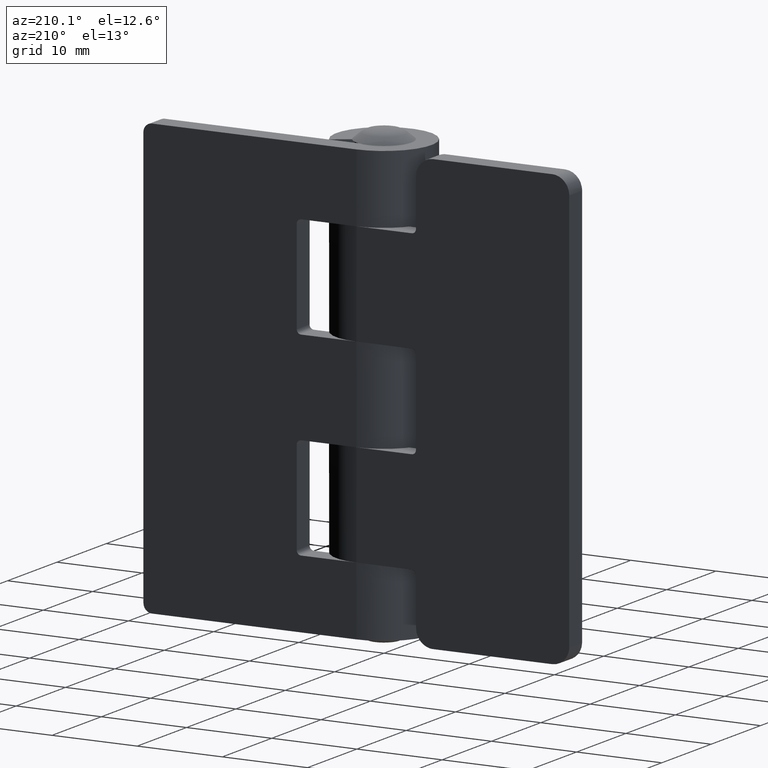
[diagram: clean part render]
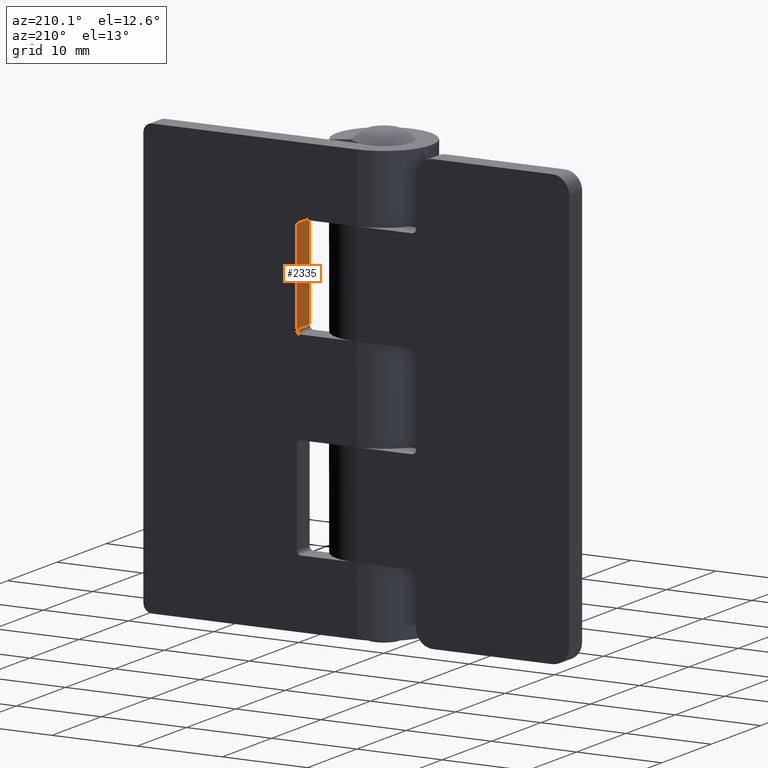
[diagram: same view with one face highlighted and labeled with its STEP entity id]
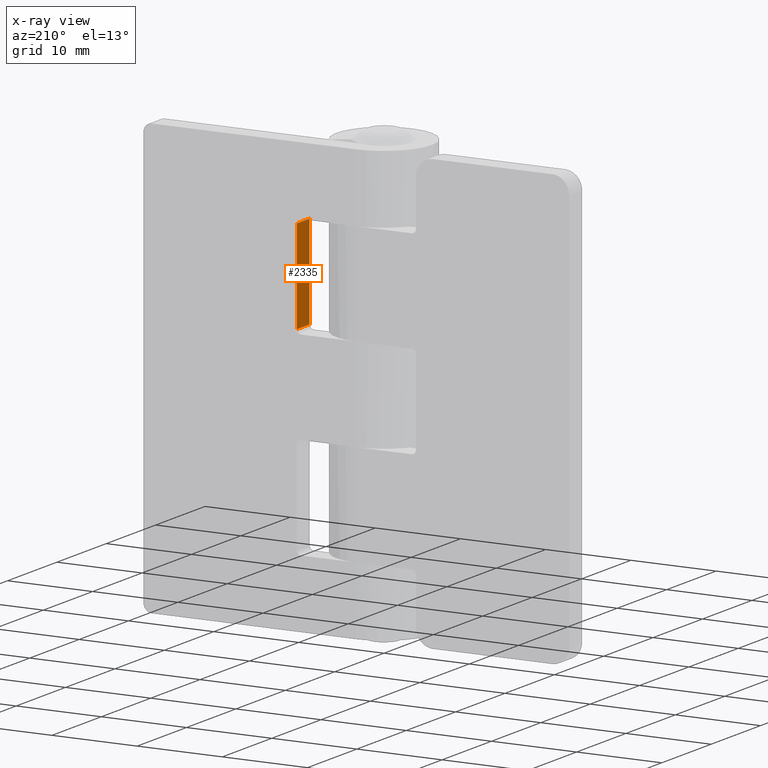
[diagram: x-ray of the same camera — body ghosted, the highlighted face saturated]
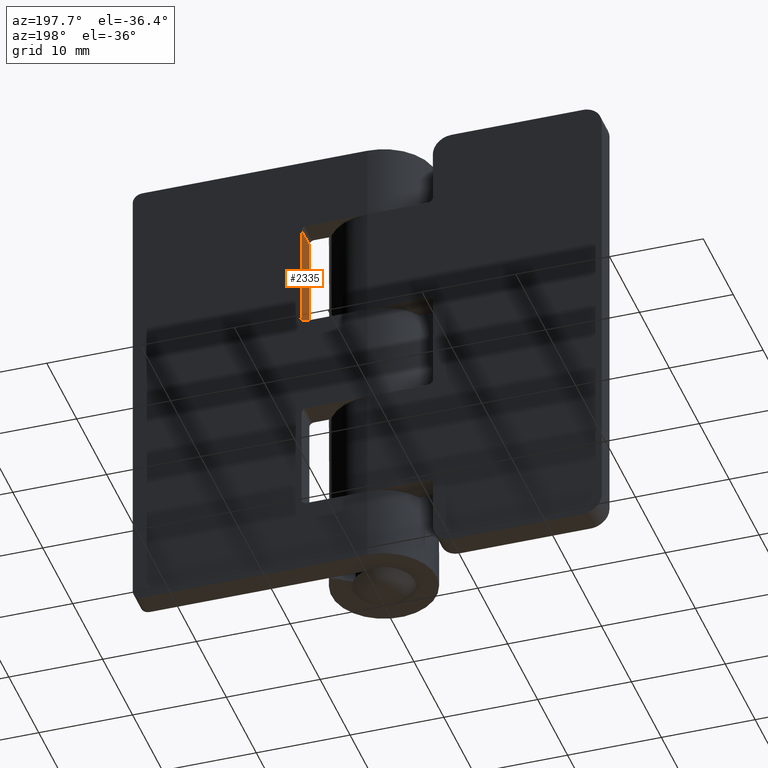
[diagram: same view with one face highlighted and labeled with its STEP entity id]
A machine part, auxiliary view. The second image highlights one B-rep face of the part: STEP entity #2335.
The next image is the same camera in x-ray: the body ghosted, the highlighted face saturated — about 0% of this face is hidden behind the body in this view.
A second angle (auxiliary view) of the same face is appended — the face is thin or edge-on in the first view.
In plain terms, the highlighted face is a freeform B-spline surface patch.
Its self-contained STEP definition (entity closure, byte-faithful):
#1756=CARTESIAN_POINT('',(6.999999999999901,2.999999000000000,42.500000000000000));
#1757=VERTEX_POINT('',#1756);
#1778=CARTESIAN_POINT('',(6.999999999999901,5.599999000000000,42.500000000000000));
#1779=VERTEX_POINT('',#1778);
#1793=CARTESIAN_POINT('',(6.999999999999901,2.999999000000000,42.500000000000000));
#1794=CARTESIAN_POINT('',(6.999999999999901,5.599999000000000,42.500000000000000));
#1795=QUASI_UNIFORM_CURVE('',1,(#1793,#1794),.UNSPECIFIED.,.F.,.U.);
#1796=EDGE_CURVE('',#1757,#1779,#1795,.T.);
#1876=CARTESIAN_POINT('',(6.999999999999901,2.999999000000000,31.500000000000000));
#1877=VERTEX_POINT('',#1876);
#1893=CARTESIAN_POINT('',(6.999999999999901,5.599999000000000,31.500000000000000));
#1894=VERTEX_POINT('',#1893);
#1895=CARTESIAN_POINT('',(6.999999999999901,5.599999000000000,31.500000000000000));
#1896=CARTESIAN_POINT('',(6.999999999999901,2.999999000000000,31.500000000000000));
#1897=QUASI_UNIFORM_CURVE('',1,(#1895,#1896),.UNSPECIFIED.,.F.,.U.);
#1898=EDGE_CURVE('',#1894,#1877,#1897,.T.);
#2316=CARTESIAN_POINT('',(6.999999999999901,2.870129005039304,43.049449978679867));
#2317=CARTESIAN_POINT('',(6.999999999999901,2.870129005039304,30.950549726277139));
#2318=CARTESIAN_POINT('',(6.999999999999901,5.729869064698130,43.049449978679867));
#2319=CARTESIAN_POINT('',(6.999999999999901,5.729869064698130,30.950549726277139));
#2320=B_SPLINE_SURFACE_WITH_KNOTS('',1,1,((#2316,#2318),(#2317,#2319)),.UNSPECIFIED.,.F.,.F.,.U.,(2,2),(2,2),(0.0,12.098900252402730),(0.0,2.859740059658826),.UNSPECIFIED.);
#2321=CARTESIAN_POINT('',(6.999999999999901,5.599999000000000,42.500000000000000));
#2322=CARTESIAN_POINT('',(6.999999999999901,5.599999000000000,31.500000000000000));
#2323=QUASI_UNIFORM_CURVE('',1,(#2321,#2322),.UNSPECIFIED.,.F.,.U.);
#2324=EDGE_CURVE('',#1779,#1894,#2323,.T.);
#2325=ORIENTED_EDGE('',*,*,#2324,.T.);
#2326=ORIENTED_EDGE('',*,*,#1898,.T.);
#2327=CARTESIAN_POINT('',(6.999999999999901,2.999999000000000,31.500000000000000));
#2328=CARTESIAN_POINT('',(6.999999999999901,2.999999000000000,42.500000000000000));
#2329=QUASI_UNIFORM_CURVE('',1,(#2327,#2328),.UNSPECIFIED.,.F.,.U.);
#2330=EDGE_CURVE('',#1877,#1757,#2329,.T.);
#2331=ORIENTED_EDGE('',*,*,#2330,.T.);
#2332=ORIENTED_EDGE('',*,*,#1796,.T.);
#2333=EDGE_LOOP('',(#2325,#2326,#2331,#2332));
#2334=FACE_OUTER_BOUND('',#2333,.T.);
#2335=ADVANCED_FACE('',(#2334),#2320,.F.);